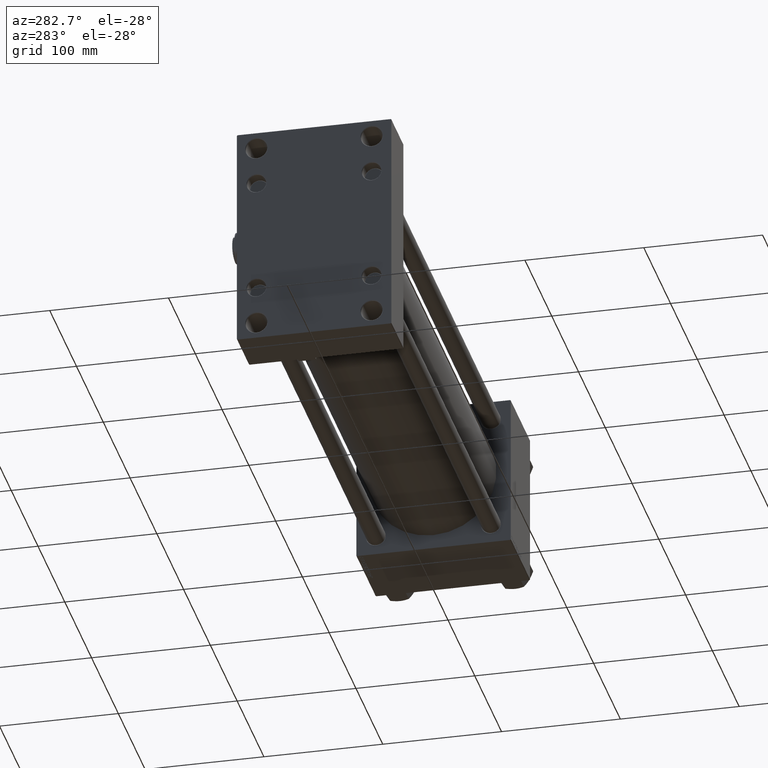
[diagram: clean part render]
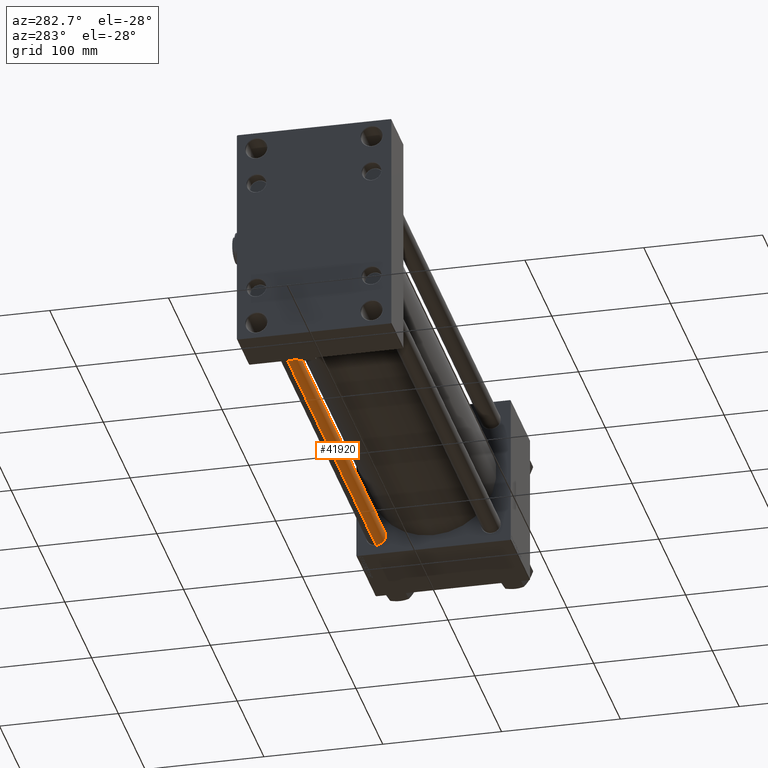
[diagram: same view with one face highlighted and labeled with its STEP entity id]
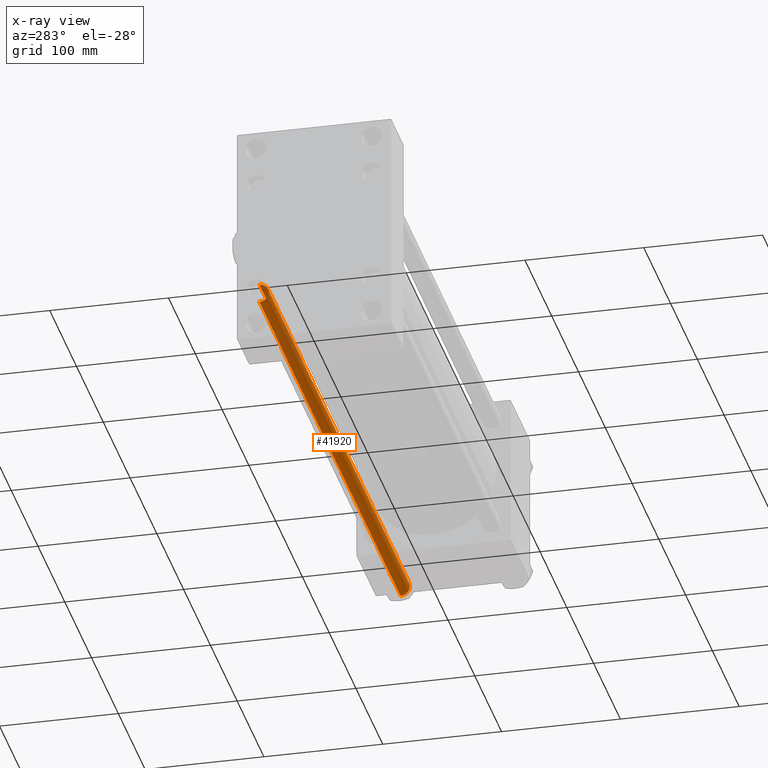
[diagram: x-ray of the same camera — body ghosted, the highlighted face saturated]
A machine part, auxiliary view. The second image highlights one B-rep face of the part: STEP entity #41920.
The next image is the same camera in x-ray: the body ghosted, the highlighted face saturated — about 11% of this face is hidden behind the body in this view.
In plain terms, the highlighted cylindrical surface (edge-blend (fillet) strip) has radius 8 mm, axis along (-1, 0, 0).
Its self-contained STEP definition (entity closure, byte-faithful):
#711 = DIRECTION ( 'NONE',  ( 0.000000000000000000, 0.000000000000000000, -1.000000000000000000 ) ) ;
#1033 = VERTEX_POINT ( 'NONE', #11526 ) ;
#1206 = ORIENTED_EDGE ( 'NONE', *, *, #7679, .T. ) ;
#1222 = CARTESIAN_POINT ( 'NONE',  ( 8.000000000000000000, 9.797174393178825657E-16, 0.5000000000000559552 ) ) ;
#2764 = VERTEX_POINT ( 'NONE', #13214 ) ;
#5222 = EDGE_CURVE ( 'NONE', #28798, #1033, #42748, .T. ) ;
#5453 = VERTEX_POINT ( 'NONE', #7878 ) ;
#5622 = CYLINDRICAL_SURFACE ( 'NONE', #22177, 8.000000000000000000 ) ;
#6241 = CARTESIAN_POINT ( 'NONE',  ( 0.000000000000000000, 0.000000000000000000, 0.5000000000000559552 ) ) ;
#7679 = EDGE_CURVE ( 'NONE', #2764, #5453, #29618, .T. ) ;
#7830 = VECTOR ( 'NONE', #32670, 1000.000000000000000 ) ;
#7878 = CARTESIAN_POINT ( 'NONE',  ( 8.000000000000000000, 9.797174393178825657E-16, 527.5000000000001137 ) ) ;
#10937 = DIRECTION ( 'NONE',  ( 1.000000000000000000, 0.000000000000000000, 0.000000000000000000 ) ) ;
#11526 = CARTESIAN_POINT ( 'NONE',  ( -8.000000000000000000, 0.000000000000000000, 0.5000000000000559552 ) ) ;
#13214 = CARTESIAN_POINT ( 'NONE',  ( -8.000000000000000000, 0.000000000000000000, 527.5000000000001137 ) ) ;
#13953 = CARTESIAN_POINT ( 'NONE',  ( 0.000000000000000000, 0.000000000000000000, 528.0000000000000000 ) ) ;
#15516 = AXIS2_PLACEMENT_3D ( 'NONE', #25639, #711, #35057 ) ;
#16383 = DIRECTION ( 'NONE',  ( -0.000000000000000000, -0.000000000000000000, -1.000000000000000000 ) ) ;
#22177 = AXIS2_PLACEMENT_3D ( 'NONE', #13953, #30830, #47740 ) ;
#24361 = LINE ( 'NONE', #51131, #7830 ) ;
#25639 = CARTESIAN_POINT ( 'NONE',  ( 0.000000000000000000, 0.000000000000000000, 527.5000000000001137 ) ) ;
#28791 = ORIENTED_EDGE ( 'NONE', *, *, #5222, .T. ) ;
#28798 = VERTEX_POINT ( 'NONE', #1222 ) ;
#29618 = CIRCLE ( 'NONE', #15516, 8.000000000000000000 ) ;
#29806 = EDGE_LOOP ( 'NONE', ( #1206, #31429, #28791, #37365 ) ) ;
#30281 = EDGE_CURVE ( 'NONE', #2764, #1033, #37394, .T. ) ;
#30830 = DIRECTION ( 'NONE',  ( -0.000000000000000000, -0.000000000000000000, -1.000000000000000000 ) ) ;
#31429 = ORIENTED_EDGE ( 'NONE', *, *, #35110, .T. ) ;
#32670 = DIRECTION ( 'NONE',  ( -0.000000000000000000, -0.000000000000000000, -1.000000000000000000 ) ) ;
#35057 = DIRECTION ( 'NONE',  ( 1.000000000000000000, 0.000000000000000000, 0.000000000000000000 ) ) ;
#35110 = EDGE_CURVE ( 'NONE', #5453, #28798, #24361, .T. ) ;
#37365 = ORIENTED_EDGE ( 'NONE', *, *, #30281, .F. ) ;
#37394 = LINE ( 'NONE', #54310, #50953 ) ;
#41920 = ADVANCED_FACE ( 'NONE', ( #51894 ), #5622, .T. ) ;
#42748 = CIRCLE ( 'NONE', #49845, 8.000000000000000000 ) ;
#44728 = DIRECTION ( 'NONE',  ( -0.000000000000000000, -0.000000000000000000, 1.000000000000000000 ) ) ;
#47740 = DIRECTION ( 'NONE',  ( -1.000000000000000000, 0.000000000000000000, 0.000000000000000000 ) ) ;
#49845 = AXIS2_PLACEMENT_3D ( 'NONE', #6241, #44728, #10937 ) ;
#50953 = VECTOR ( 'NONE', #16383, 1000.000000000000000 ) ;
#51131 = CARTESIAN_POINT ( 'NONE',  ( 8.000000000000000000, 9.797174393178825657E-16, 528.0000000000000000 ) ) ;
#51894 = FACE_OUTER_BOUND ( 'NONE', #29806, .T. ) ;
#54310 = CARTESIAN_POINT ( 'NONE',  ( -8.000000000000000000, 0.000000000000000000, 528.0000000000000000 ) ) ;